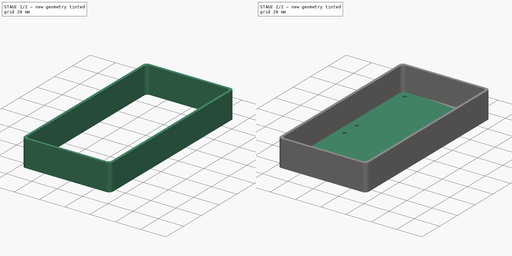
[diagram: build sequence overview — one tinted view per stage of 2, left to right]
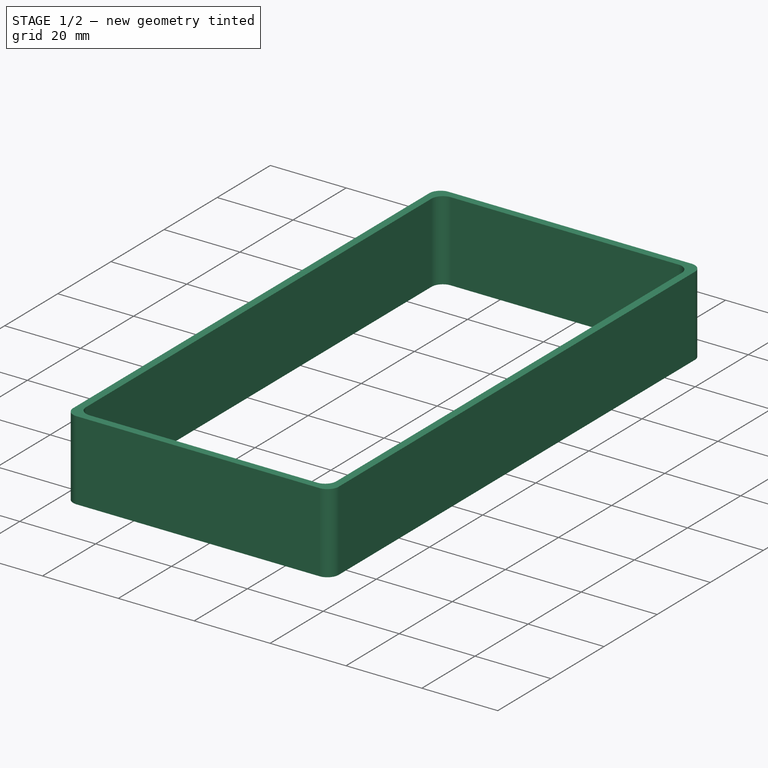
[diagram: stage 1 of 2 — iso view after this stage's code; geometry added in this stage tinted green]
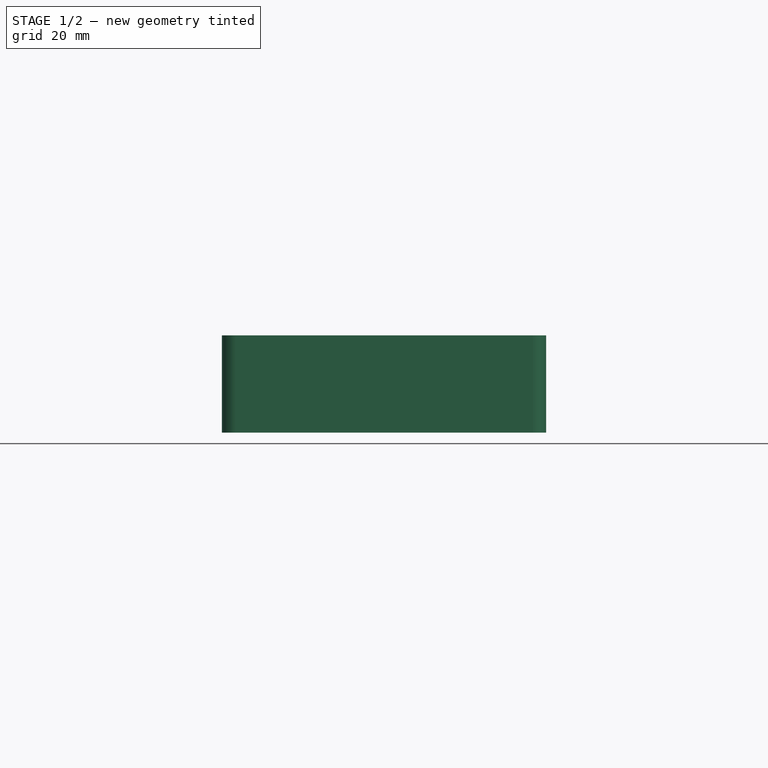
[diagram: stage 1 of 2 — front view after this stage's code; geometry added in this stage tinted green]
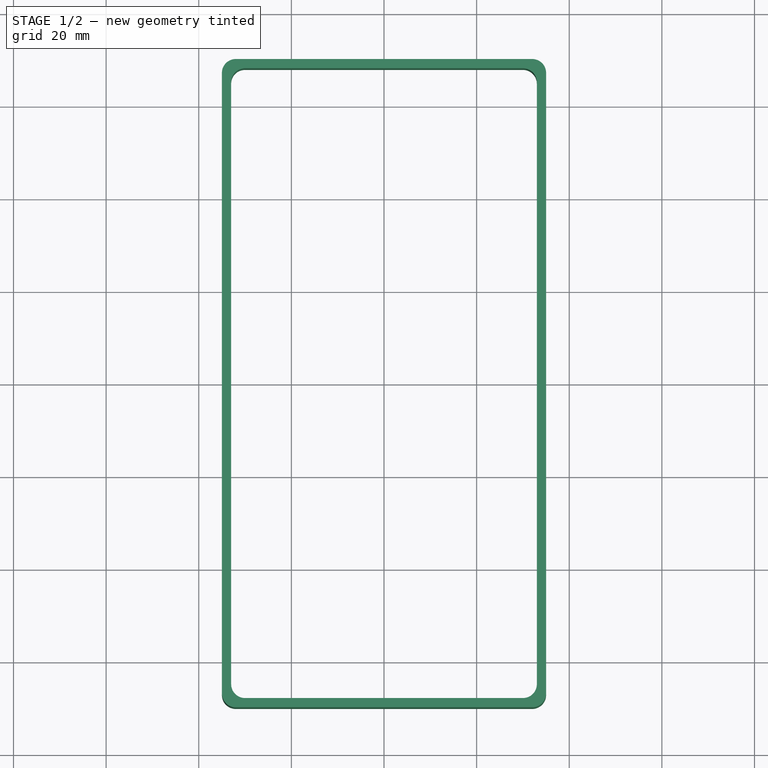
[diagram: stage 1 of 2 — top view after this stage's code; geometry added in this stage tinted green]
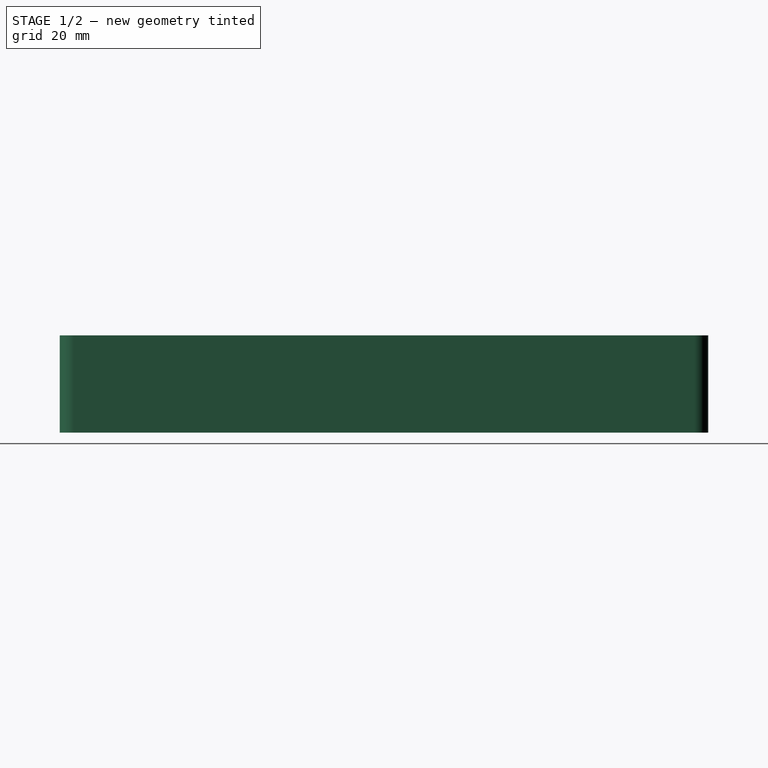
[diagram: stage 1 of 2 — right view after this stage's code; geometry added in this stage tinted green]
FCSTD DOCUMENT  (FreeCAD 0.20R29410 (Git))
Label: 风速表外壳
License: All rights reserved
LicenseURL: http://en.wikipedia.org/wiki/All_rights_reserved
objects: PartDesign::Pad×4, Sketcher::SketchObject×3, PartDesign::Body×3
note: 14 computed .brp shape members not serialized (recipe doc carries the construction recipe); baked Part::Feature solids carry a one-line shape summary decoded from their .brp

FEATURE [PartDesign::Body] Body001  label="顶部"
  Group = -> [Sketch001,Pad001]
  Origin = -> Origin001
  Placement = pos=(0,0,44) rot=(0,0,1;0rad)
  Tip = -> Pad001
FEATURE [Sketcher::SketchObject] Sketch002
  FullyConstrained = true
  MapMode = 5
  Support = -> [XY_Plane002]
  sketch-geometry (20):
    g0: ArcOfCircle CenterX=-32 CenterY=67 CenterZ=0 NormalX=0 NormalY=0 NormalZ=1 AngleXU=0 Radius=3 StartAngle=1.5708 EndAngle=3.14159
    g1: LineSegment StartX=-32 StartY=70 StartZ=0 EndX=32 EndY=70 EndZ=0
    g2: ArcOfCircle CenterX=32 CenterY=67 CenterZ=0 NormalX=0 NormalY=0 NormalZ=1 AngleXU=0 Radius=3 StartAngle=1.8e-15 EndAngle=1.5708
    g3: LineSegment StartX=35 StartY=67 StartZ=0 EndX=35 EndY=-67 EndZ=0
    g4: ArcOfCircle CenterX=32 CenterY=-67 CenterZ=0 NormalX=0 NormalY=0 NormalZ=1 AngleXU=0 Radius=3 StartAngle=4.71239 EndAngle=6.28319
    g5: LineSegment StartX=32 StartY=-70 StartZ=0 EndX=-32 EndY=-70 EndZ=0
    g6: ArcOfCircle CenterX=-32 CenterY=-67 CenterZ=0 NormalX=0 NormalY=0 NormalZ=1 AngleXU=0 Radius=3 StartAngle=3.14159 EndAngle=4.71239
    g7: LineSegment StartX=-35 StartY=-67 StartZ=0 EndX=-35 EndY=67 EndZ=0
    g8: GeomPoint X=-35 Y=70 Z=0
    g9: GeomPoint X=35 Y=-70 Z=0
    g10: ArcOfCircle CenterX=-30 CenterY=65 CenterZ=0 NormalX=0 NormalY=0 NormalZ=1 AngleXU=0 Radius=3 StartAngle=1.5708 EndAngle=3.14159
    g11: LineSegment StartX=-30 StartY=68 StartZ=0 EndX=30 EndY=68 EndZ=0
    g12: ArcOfCircle CenterX=30 CenterY=65 CenterZ=0 NormalX=0 NormalY=0 NormalZ=1 AngleXU=0 Radius=3 StartAngle=2.2e-15 EndAngle=1.5708
    g13: LineSegment StartX=33 StartY=65 StartZ=0 EndX=33 EndY=-65 EndZ=0
    g14: ArcOfCircle CenterX=30 CenterY=-65 CenterZ=0 NormalX=0 NormalY=0 NormalZ=1 AngleXU=0 Radius=3 StartAngle=4.71239 EndAngle=6.28319
    g15: LineSegment StartX=30 StartY=-68 StartZ=0 EndX=-30 EndY=-68 EndZ=0
    g16: ArcOfCircle CenterX=-30 CenterY=-65 CenterZ=0 NormalX=0 NormalY=0 NormalZ=1 AngleXU=0 Radius=3 StartAngle=3.14159 EndAngle=4.71239
    g17: LineSegment StartX=-33 StartY=-65 StartZ=0 EndX=-33 EndY=65 EndZ=0
    g18: GeomPoint X=-33 Y=68 Z=0
    g19: GeomPoint X=33 Y=-68 Z=0
  constraints (44):
    c: Tangent(g0,g1) = 1.5708
    c: Tangent(g1,g2) = 1.5708
    c: Tangent(g2,g3) = 1.5708
    c: Tangent(g3,g4) = 1.5708
    c: Tangent(g4,g5) = 1.5708
    c: Tangent(g5,g6) = 1.5708
    c: Tangent(g6,g7) = 1.5708
    c: Tangent(g7,g0) = 1.5708
    c: Horizontal(g1)
    c: Horizontal(g5)
    c: Vertical(g3)
    c: Equal(g2,g4)
    c: Equal(g4,g6)
    c: PointOnObject(g8,g1)
    c: PointOnObject(g8,g7)
    c: PointOnObject(g9,g3)
    c: PointOnObject(g9,g5)
    c: Radius(g2) = 3
    c: Symmetric(g0,g2,g-2)
    c: Symmetric(g6,g0,g-1)
    c: DistanceX(g0,g2) = 70
    c: DistanceY(g5,g0) = 140
    c: Tangent(g10,g11) = 1.5708
    c: Tangent(g11,g12) = 1.5708
    c: Tangent(g12,g13) = 1.5708
    c: Tangent(g13,g14) = 1.5708
    c: Tangent(g14,g15) = 1.5708
    c: Tangent(g15,g16) = 1.5708
    c: Tangent(g16,g17) = 1.5708
    c: Tangent(g17,g10) = 1.5708
    c: Horizontal(g11)
    c: Horizontal(g15)
    c: Vertical(g13)
    c: Equal(g12,g14)
    c: Equal(g14,g16)
    c: PointOnObject(g18,g11)
    c: PointOnObject(g18,g17)
    c: PointOnObject(g19,g13)
    c: PointOnObject(g19,g15)
    c: Radius(g14) = 3
    c: Symmetric(g10,g12,g-2)
    c: Symmetric(g10,g16,g-1)
    c: Distance(g11,g14) = 136
    c: Distance(g13,g16) = 66
FEATURE [PartDesign::Pad] Pad002
  Direction = (0,0,1)
  Length = 2
  Length2 = 10
  Profile = -> Sketch002
  ReferenceAxis = -> Sketch002 [N_Axis]
  Type = 0
FEATURE [PartDesign::Pad] Pad003
  BaseFeature = -> Pad002
  Direction = (0,0,1)
  Length = 21
  Length2 = 10
  Profile = -> Sketch002
  ReferenceAxis = -> Sketch002 [N_Axis]
  Type = 0
FEATURE [PartDesign::Body] Body002  label="周围"
  Group = -> [Sketch002,Pad002,Pad003]
  Origin = -> Origin002
  Placement = pos=(0,0,105) rot=(0,0,1;0rad)
  Tip = -> Pad003
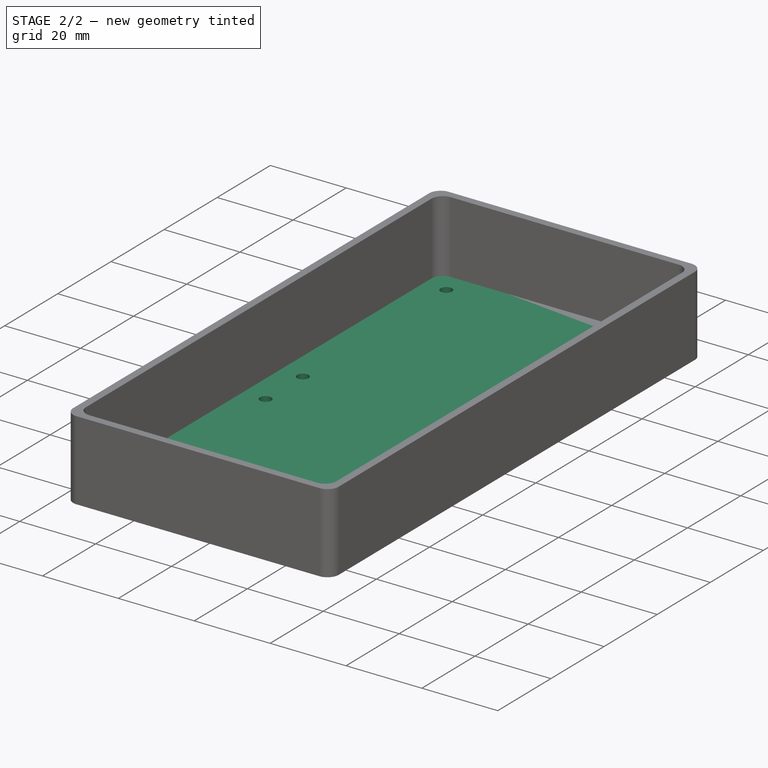
[diagram: stage 2 of 2 — iso view after this stage's code; geometry added in this stage tinted green]
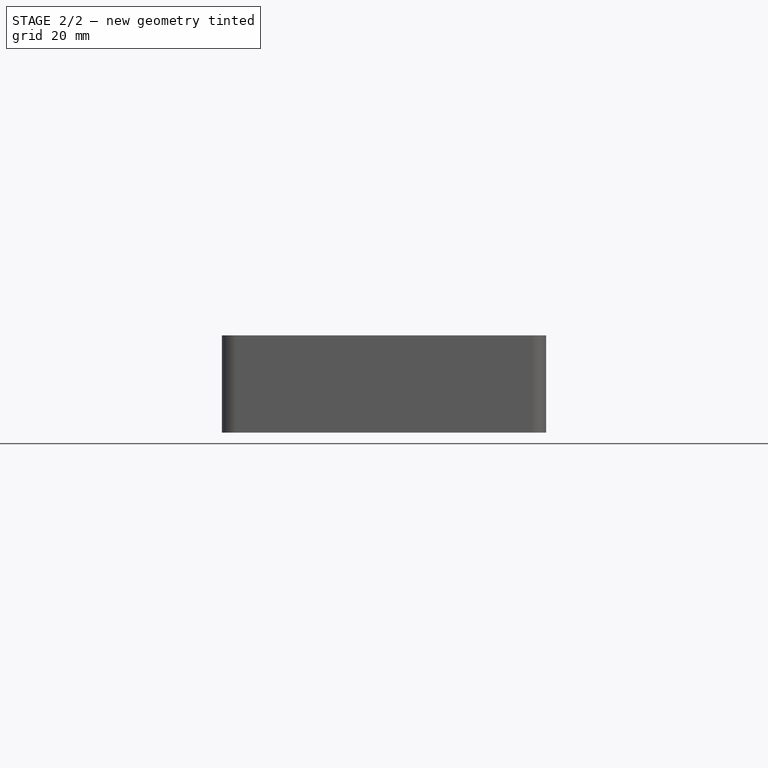
[diagram: stage 2 of 2 — front view after this stage's code; geometry added in this stage tinted green]
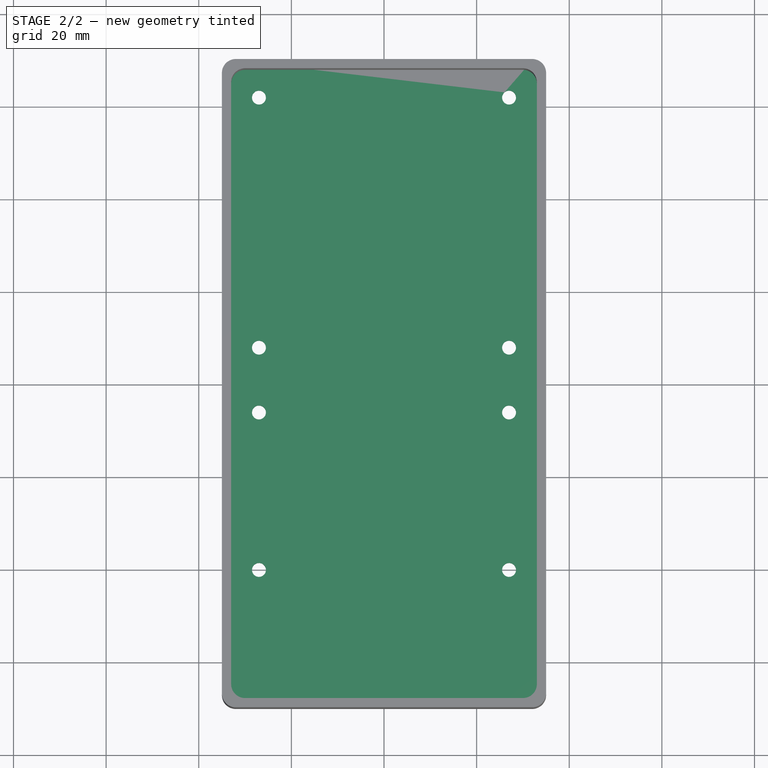
[diagram: stage 2 of 2 — top view after this stage's code; geometry added in this stage tinted green]
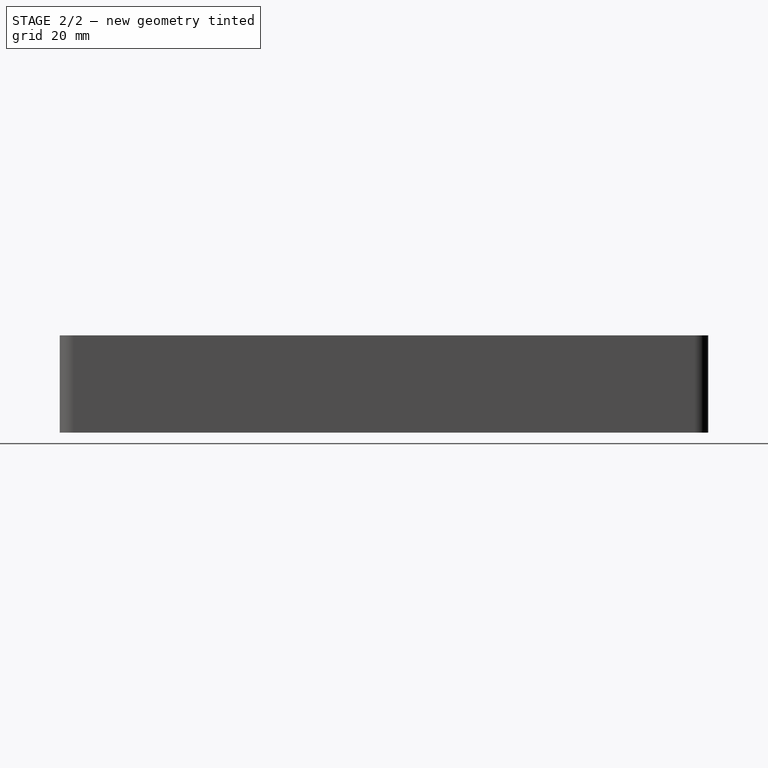
[diagram: stage 2 of 2 — right view after this stage's code; geometry added in this stage tinted green]
FEATURE [Sketcher::SketchObject] Sketch
  FullyConstrained = true
  MapMode = 5
  Support = -> [XY_Plane]
  sketch-geometry (34):
    g0: ArcOfCircle CenterX=-32 CenterY=67 CenterZ=0 NormalX=0 NormalY=0 NormalZ=1 AngleXU=0 Radius=3 StartAngle=1.5708 EndAngle=3.14159
    g1: LineSegment StartX=-32 StartY=70 StartZ=0 EndX=32 EndY=70 EndZ=0
    g2: ArcOfCircle CenterX=32 CenterY=67 CenterZ=0 NormalX=0 NormalY=0 NormalZ=1 AngleXU=0 Radius=3 StartAngle=1.7537e-12 EndAngle=1.5708
    g3: LineSegment StartX=35 StartY=67 StartZ=0 EndX=35 EndY=-67 EndZ=0
    g4: ArcOfCircle CenterX=32 CenterY=-67 CenterZ=0 NormalX=0 NormalY=0 NormalZ=1 AngleXU=0 Radius=3 StartAngle=4.71239 EndAngle=6.28319
    g5: LineSegment StartX=32 StartY=-70 StartZ=0 EndX=-32 EndY=-70 EndZ=0
    g6: ArcOfCircle CenterX=-32 CenterY=-67 CenterZ=0 NormalX=0 NormalY=0 NormalZ=1 AngleXU=0 Radius=3 StartAngle=3.14159 EndAngle=4.71239
    g7: LineSegment StartX=-35 StartY=-67 StartZ=0 EndX=-35 EndY=67 EndZ=0
    g8: GeomPoint X=-35 Y=70 Z=0
    g9: GeomPoint X=35 Y=-70 Z=0
    g10: Circle CenterX=-27 CenterY=62 CenterZ=0 NormalX=0 NormalY=0 NormalZ=1 AngleXU=0 Radius=1.5
    g11: Circle CenterX=27 CenterY=62 CenterZ=0 NormalX=0 NormalY=0 NormalZ=1 AngleXU=0 Radius=1.5
    g12: Circle CenterX=-27 CenterY=8 CenterZ=0 NormalX=0 NormalY=0 NormalZ=1 AngleXU=0 Radius=1.5
    g13: Circle CenterX=27 CenterY=8 CenterZ=0 NormalX=0 NormalY=0 NormalZ=1 AngleXU=0 Radius=1.5
    g14: Circle CenterX=-27 CenterY=-6 CenterZ=0 NormalX=0 NormalY=0 NormalZ=1 AngleXU=0 Radius=1.5
    g15: Circle CenterX=27 CenterY=-6 CenterZ=0 NormalX=0 NormalY=0 NormalZ=1 AngleXU=0 Radius=1.5
    g16: Circle CenterX=-27 CenterY=-40 CenterZ=0 NormalX=0 NormalY=0 NormalZ=1 AngleXU=0 Radius=1.5
    g17: Circle CenterX=27 CenterY=-40 CenterZ=0 NormalX=0 NormalY=0 NormalZ=1 AngleXU=0 Radius=1.5
    g18: LineSegment StartX=33 StartY=-40 StartZ=0 EndX=34 EndY=-40 EndZ=0
    g19: LineSegment StartX=34 StartY=-40 StartZ=0 EndX=34 EndY=-45 EndZ=0
    g20: LineSegment StartX=34 StartY=-45 StartZ=0 EndX=33 EndY=-45 EndZ=0
    g21: LineSegment StartX=33 StartY=-45 StartZ=0 EndX=33 EndY=-40 EndZ=0
    g22: LineSegment StartX=-34 StartY=-40 StartZ=0 EndX=-33 EndY=-40 EndZ=0
    g23: LineSegment StartX=-33 StartY=-40 StartZ=0 EndX=-33 EndY=-45 EndZ=0
    g24: LineSegment StartX=-33 StartY=-45 StartZ=0 EndX=-34 EndY=-45 EndZ=0
    g25: LineSegment StartX=-34 StartY=-45 StartZ=0 EndX=-34 EndY=-40 EndZ=0
    g26: LineSegment StartX=33 StartY=45 StartZ=0 EndX=34 EndY=45 EndZ=0
    g27: LineSegment StartX=34 StartY=45 StartZ=0 EndX=34 EndY=40 EndZ=0
    g28: LineSegment StartX=34 StartY=40 StartZ=0 EndX=33 EndY=40 EndZ=0
    g29: LineSegment StartX=33 StartY=40 StartZ=0 EndX=33 EndY=45 EndZ=0
    g30: LineSegment StartX=-34 StartY=45 StartZ=0 EndX=-33 EndY=45 EndZ=0
    g31: LineSegment StartX=-33 StartY=45 StartZ=0 EndX=-33 EndY=40 EndZ=0
    g32: LineSegment StartX=-33 StartY=40 StartZ=0 EndX=-34 EndY=40 EndZ=0
    g33: LineSegment StartX=-34 StartY=40 StartZ=0 EndX=-34 EndY=45 EndZ=0
  constraints (94):
    c: Tangent(g0,g1) = 1.5708
    c: Tangent(g1,g2) = 1.5708
    c: Tangent(g2,g3) = 1.5708
    c: Tangent(g3,g4) = 1.5708
    c: Tangent(g4,g5) = 1.5708
    c: Tangent(g5,g6) = 1.5708
    c: Tangent(g6,g7) = 1.5708
    c: Tangent(g7,g0) = 1.5708
    c: Horizontal(g1)
    c: Horizontal(g5)
    c: Vertical(g3)
    c: Equal(g2,g4)
    c: Equal(g4,g6)
    c: PointOnObject(g8,g1)
    c: PointOnObject(g8,g7)
    c: PointOnObject(g9,g3)
    c: PointOnObject(g9,g5)
    c: Radius(g2) = 3
    c: Symmetric(g0,g2,g-2)
    c: Symmetric(g6,g0,g-1)
    c: DistanceX(g0,g2) = 70
    c: DistanceY(g5,g0) = 140
    c: Diameter(g10) = 3
    c: Distance(g10,g7) = 8
    c: Distance(g10,g1) = 8
    c: Diameter(g11) = 3
    c: Distance(g11,g3) = 8
    c: Distance(g11,g1) = 8
    c: Diameter(g12) = 3
    c: Diameter(g14) = 3
    c: Diameter(g13) = 3
    c: Diameter(g15) = 3
    c: Diameter(g16) = 3
    c: Diameter(g17) = 3
    c: Distance(g12,g7) = 8
    c: Distance(g12,g1) = 62
    c: Distance(g13,g3) = 8
    c: Distance(g13,g1) = 62
    c: Distance(g14,g7) = 8
    c: Distance(g14,g1) = 76
    c: Distance(g15,g3) = 8
    c: Distance(g15,g1) = 76
    c: Distance(g16,g7) = 8
    c: Distance(g16,g5) = 30
    c: Distance(g17,g3) = 8
    c: Distance(g17,g5) = 30
    c: Coincident(g18,g19)
    c: Coincident(g19,g20)
    c: Coincident(g20,g21)
    c: Coincident(g21,g18)
    c: Horizontal(g18)
    c: Horizontal(g20)
    c: Vertical(g19)
    c: Vertical(g21)
    c: Distance(g19) = 5
    c: Distance(g18) = 1
    c: Distance(g18,g3) = 1
    c: Distance(g19,g5) = 25
    c: Coincident(g22,g23)
    c: Coincident(g23,g24)
    c: Coincident(g24,g25)
    c: Coincident(g25,g22)
    c: Horizontal(g22)
    c: Horizontal(g24)
    c: Vertical(g23)
    c: Vertical(g25)
    c: Distance(g22) = 1
    c: Distance(g23) = 5
    c: Distance(g22,g7) = 1
    c: Distance(g24,g5) = 25
    c: Coincident(g26,g27)
    c: Coincident(g27,g28)
    c: Coincident(g28,g29)
    c: Coincident(g29,g26)
    c: Horizontal(g26)
    c: Horizontal(g28)
    c: Vertical(g27)
    c: Vertical(g29)
    c: Distance(g27) = 5
    c: Distance(g26) = 1
    c: Distance(g26,g3) = 1
    c: Distance(g26,g1) = 25
    c: Coincident(g30,g31)
    c: Coincident(g31,g32)
    c: Coincident(g32,g33)
    c: Coincident(g33,g30)
    c: Horizontal(g30)
    c: Horizontal(g32)
    c: Vertical(g31)
    c: Vertical(g33)
    c: Distance(g30) = 1
    c: Distance(g33) = 5
    c: Distance(g30,g7) = 1
    c: Distance(g30,g1) = 25
FEATURE [PartDesign::Pad] Pad
  Direction = (0,0,1)
  Length = 2
  Length2 = 10
  Profile = -> Sketch
  ReferenceAxis = -> Sketch [N_Axis]
  Type = 0
FEATURE [PartDesign::Body] Body  label="底部"
  Group = -> [Sketch,Pad]
  Origin = -> Origin
  Tip = -> Pad
FEATURE [Sketcher::SketchObject] Sketch001
  FullyConstrained = false
  MapMode = 5
  Support = -> [XY_Plane001]
  sketch-geometry (55):
    g0: ArcOfCircle CenterX=-32 CenterY=67 CenterZ=0 NormalX=0 NormalY=0 NormalZ=1 AngleXU=0 Radius=3 StartAngle=1.5708 EndAngle=3.14159
    g1: LineSegment StartX=-32 StartY=70 StartZ=0 EndX=32 EndY=70 EndZ=0
    g2: ArcOfCircle CenterX=32 CenterY=67 CenterZ=0 NormalX=0 NormalY=0 NormalZ=1 AngleXU=0 Radius=3 StartAngle=1.7537e-12 EndAngle=1.5708
    g3: LineSegment StartX=35 StartY=67 StartZ=0 EndX=35 EndY=-67 EndZ=0
    g4: ArcOfCircle CenterX=32 CenterY=-67 CenterZ=0 NormalX=0 NormalY=0 NormalZ=1 AngleXU=0 Radius=3 StartAngle=4.71239 EndAngle=6.28319
    g5: LineSegment StartX=32 StartY=-70 StartZ=0 EndX=-32 EndY=-70 EndZ=0
    g6: ArcOfCircle CenterX=-32 CenterY=-67 CenterZ=0 NormalX=0 NormalY=0 NormalZ=1 AngleXU=0 Radius=3 StartAngle=3.14159 EndAngle=4.71239
    g7: LineSegment StartX=-35 StartY=-67 StartZ=0 EndX=-35 EndY=67 EndZ=0
    g8: GeomPoint X=-35 Y=70 Z=0
    g9: GeomPoint X=35 Y=-70 Z=0
    g10: Circle CenterX=-27 CenterY=62 CenterZ=0 NormalX=0 NormalY=0 NormalZ=1 AngleXU=0 Radius=1.5
    g11: Circle CenterX=27 CenterY=62 CenterZ=0 NormalX=0 NormalY=0 NormalZ=1 AngleXU=0 Radius=1.5
    g12: Circle CenterX=-27 CenterY=8 CenterZ=0 NormalX=0 NormalY=0 NormalZ=1 AngleXU=0 Radius=1.5
    g13: Circle CenterX=27 CenterY=8 CenterZ=0 NormalX=0 NormalY=0 NormalZ=1 AngleXU=0 Radius=1.5
    g14: Circle CenterX=-27 CenterY=-6 CenterZ=0 NormalX=0 NormalY=0 NormalZ=1 AngleXU=0 Radius=1.5
    g15: Circle CenterX=27 CenterY=-6 CenterZ=0 NormalX=0 NormalY=0 NormalZ=1 AngleXU=0 Radius=1.5
    g16: Circle CenterX=-27 CenterY=-40 CenterZ=0 NormalX=0 NormalY=0 NormalZ=1 AngleXU=0 Radius=1.5
    g17: Circle CenterX=27 CenterY=-40 CenterZ=0 NormalX=0 NormalY=0 NormalZ=1 AngleXU=0 Radius=1.5
    g18: LineSegment StartX=33 StartY=-40 StartZ=0 EndX=34 EndY=-40 EndZ=0
    g19: LineSegment StartX=34 StartY=-40 StartZ=0 EndX=34 EndY=-45 EndZ=0
    g20: LineSegment StartX=34 StartY=-45 StartZ=0 EndX=33 EndY=-45 EndZ=0
    g21: LineSegment StartX=33 StartY=-45 StartZ=0 EndX=33 EndY=-40 EndZ=0
    g22: LineSegment StartX=-34 StartY=-40 StartZ=0 EndX=-33 EndY=-40 EndZ=0
    g23: LineSegment StartX=-33 StartY=-40 StartZ=0 EndX=-33 EndY=-45 EndZ=0
    g24: LineSegment StartX=-33 StartY=-45 StartZ=0 EndX=-34 EndY=-45 EndZ=0
    g25: LineSegment StartX=-34 StartY=-45 StartZ=0 EndX=-34 EndY=-40 EndZ=0
    g26: LineSegment StartX=33 StartY=45 StartZ=0 EndX=34 EndY=45 EndZ=0
    g27: LineSegment StartX=34 StartY=45 StartZ=0 EndX=34 EndY=40 EndZ=0
    g28: LineSegment StartX=34 StartY=40 StartZ=0 EndX=33 EndY=40 EndZ=0
    g29: LineSegment StartX=33 StartY=40 StartZ=0 EndX=33 EndY=45 EndZ=0
    g30: LineSegment StartX=-34 StartY=45 StartZ=0 EndX=-33 EndY=45 EndZ=0
    g31: LineSegment StartX=-33 StartY=45 StartZ=0 EndX=-33 EndY=40 EndZ=0
    g32: LineSegment StartX=-33 StartY=40 StartZ=0 EndX=-34 EndY=40 EndZ=0
    g33: LineSegment StartX=-34 StartY=40 StartZ=0 EndX=-34 EndY=45 EndZ=0
    g34: Circle CenterX=-20.5948 CenterY=-13.7228 CenterZ=0 NormalX=0 NormalY=0 NormalZ=1 AngleXU=0 Radius=1.75
    g35: LineSegment StartX=-2.50559 StartY=-16.9946 StartZ=0 EndX=3.58812 EndY=-16.9946 EndZ=0
    g36: LineSegment StartX=3.58812 StartY=-16.9946 StartZ=0 EndX=3.58812 EndY=-23.0792 EndZ=0
    g37: LineSegment StartX=3.58812 StartY=-23.0792 StartZ=0 EndX=-2.50559 EndY=-23.0792 EndZ=0
    g38: LineSegment StartX=-2.50559 StartY=-23.0792 StartZ=0 EndX=-2.50559 EndY=-16.9946 EndZ=0
    g39: LineSegment StartX=-2.49582 StartY=-25.3022 StartZ=0 EndX=3.58228 EndY=-25.3022 EndZ=0
    g40: LineSegment StartX=3.58228 StartY=-25.3022 StartZ=0 EndX=3.58228 EndY=-31.376 EndZ=0
    g41: LineSegment StartX=3.58228 StartY=-31.376 StartZ=0 EndX=-2.49582 EndY=-31.376 EndZ=0
    g42: LineSegment StartX=-2.49582 StartY=-31.376 StartZ=0 EndX=-2.49582 EndY=-25.3022 EndZ=0
    g43: LineSegment StartX=-12.2223 StartY=-25.305 StartZ=0 EndX=-6.11208 EndY=-25.305 EndZ=0
    g44: LineSegment StartX=-6.11208 StartY=-25.305 StartZ=0 EndX=-6.11208 EndY=-31.3785 EndZ=0
    g45: LineSegment StartX=-6.11208 StartY=-31.3785 StartZ=0 EndX=-12.2223 EndY=-31.3785 EndZ=0
    g46: LineSegment StartX=-12.2223 StartY=-31.3785 StartZ=0 EndX=-12.2223 EndY=-25.305 EndZ=0
    g47: LineSegment StartX=7.2168 StartY=-25.3228 StartZ=0 EndX=13.2893 EndY=-25.3228 EndZ=0
    g48: LineSegment StartX=13.2893 StartY=-25.3228 StartZ=0 EndX=13.2893 EndY=-31.3598 EndZ=0
    g49: LineSegment StartX=13.2893 StartY=-31.3598 StartZ=0 EndX=7.2168 EndY=-31.3598 EndZ=0
    g50: LineSegment StartX=7.2168 StartY=-31.3598 StartZ=0 EndX=7.2168 EndY=-25.3228 EndZ=0
    g51: LineSegment StartX=-2.48669 StartY=-33.6423 StartZ=0 EndX=3.56185 EndY=-33.6423 EndZ=0
    g52: LineSegment StartX=3.56185 StartY=-33.6423 StartZ=0 EndX=3.56185 EndY=-39.7005 EndZ=0
    g53: LineSegment StartX=3.56185 StartY=-39.7005 StartZ=0 EndX=-2.48669 EndY=-39.7005 EndZ=0
    g54: LineSegment StartX=-2.48669 StartY=-39.7005 StartZ=0 EndX=-2.48669 EndY=-33.6423 EndZ=0
  constraints (135):
    c: Tangent(g0,g1) = 1.5708
    c: Tangent(g1,g2) = 1.5708
    c: Tangent(g2,g3) = 1.5708
    c: Tangent(g3,g4) = 1.5708
    c: Tangent(g4,g5) = 1.5708
    c: Tangent(g5,g6) = 1.5708
    c: Tangent(g6,g7) = 1.5708
    c: Tangent(g7,g0) = 1.5708
    c: Horizontal(g1)
    c: Horizontal(g5)
    c: Vertical(g3)
    c: Equal(g2,g4)
    c: Equal(g4,g6)
    c: PointOnObject(g8,g1)
    c: PointOnObject(g8,g7)
    c: PointOnObject(g9,g3)
    c: PointOnObject(g9,g5)
    c: Radius(g2) = 3
    c: Symmetric(g0,g2,g-2)
    c: Symmetric(g6,g0,g-1)
    c: DistanceX(g0,g2) = 70
    c: DistanceY(g5,g0) = 140
    c: Diameter(g10) = 3
    c: Distance(g10,g7) = 8
    c: Distance(g10,g1) = 8
    c: Diameter(g11) = 3
    c: Distance(g11,g3) = 8
    c: Distance(g11,g1) = 8
    c: Diameter(g12) = 3
    c: Diameter(g14) = 3
    c: Diameter(g13) = 3
    c: Diameter(g15) = 3
    c: Diameter(g16) = 3
    c: Diameter(g17) = 3
    c: Distance(g12,g7) = 8
    c: Distance(g12,g1) = 62
    c: Distance(g13,g3) = 8
    c: Distance(g13,g1) = 62
    c: Distance(g14,g7) = 8
    c: Distance(g14,g1) = 76
    c: Distance(g15,g3) = 8
    c: Distance(g15,g1) = 76
    c: Distance(g16,g7) = 8
    c: Distance(g16,g5) = 30
    c: Distance(g17,g3) = 8
    c: Distance(g17,g5) = 30
    c: Coincident(g18,g19)
    c: Coincident(g19,g20)
    c: Coincident(g20,g21)
    c: Coincident(g21,g18)
    c: Horizontal(g18)
    c: Horizontal(g20)
    c: Vertical(g19)
    c: Vertical(g21)
    c: Distance(g19) = 5
    c: Distance(g18) = 1
    c: Distance(g18,g3) = 1
    c: Distance(g19,g5) = 25
    c: Coincident(g22,g23)
    c: Coincident(g23,g24)
    c: Coincident(g24,g25)
    c: Coincident(g25,g22)
    c: Horizontal(g22)
    c: Horizontal(g24)
    c: Vertical(g23)
    c: Vertical(g25)
    c: Distance(g22) = 1
    c: Distance(g23) = 5
    c: Distance(g22,g7) = 1
    c: Distance(g24,g5) = 25
    c: Coincident(g26,g27)
    c: Coincident(g27,g28)
    c: Coincident(g28,g29)
    c: Coincident(g29,g26)
    c: Horizontal(g26)
    c: Horizontal(g28)
    c: Vertical(g27)
    c: Vertical(g29)
    c: Distance(g27) = 5
    c: Distance(g26) = 1
    c: Distance(g26,g3) = 1
    c: Distance(g26,g1) = 25
    c: Coincident(g30,g31)
    c: Coincident(g31,g32)
    c: Coincident(g32,g33)
    c: Coincident(g33,g30)
    c: Horizontal(g30)
    c: Horizontal(g32)
    c: Vertical(g31)
    c: Vertical(g33)
    c: Distance(g30) = 1
    c: Distance(g33) = 5
    c: Distance(g30,g7) = 1
    c: Distance(g30,g1) = 25
    c: Diameter(g34) = 3.5
    c: Coincident(g35,g36)
    c: Coincident(g36,g37)
    c: Coincident(g37,g38)
    c: Coincident(g38,g35)
    c: Horizontal(g35)
    c: Horizontal(g37)
    c: Vertical(g36)
    c: Vertical(g38)
    c: Coincident(g39,g40)
    c: Coincident(g40,g41)
    c: Coincident(g41,g42)
    c: Coincident(g42,g39)
    c: Horizontal(g39)
    c: Horizontal(g41)
    c: Vertical(g40)
    c: Vertical(g42)
    c: Coincident(g43,g44)
    c: Coincident(g44,g45)
    c: Coincident(g45,g46)
    c: Coincident(g46,g43)
    c: Horizontal(g43)
    c: Horizontal(g45)
    c: Vertical(g44)
    c: Vertical(g46)
    c: Coincident(g47,g48)
    c: Coincident(g48,g49)
    c: Coincident(g49,g50)
    c: Coincident(g50,g47)
    c: Horizontal(g47)
    c: Horizontal(g49)
    c: Vertical(g48)
    c: Vertical(g50)
    c: Coincident(g51,g52)
    c: Coincident(g52,g53)
    c: Coincident(g53,g54)
    c: Coincident(g54,g51)
    c: Horizontal(g51)
    c: Horizontal(g53)
    c: Vertical(g52)
    c: Vertical(g54)
FEATURE [PartDesign::Pad] Pad001
  Direction = (0,0,1)
  Length = 2
  Length2 = 10
  Profile = -> Sketch001
  ReferenceAxis = -> Sketch001 [N_Axis]
  Type = 0
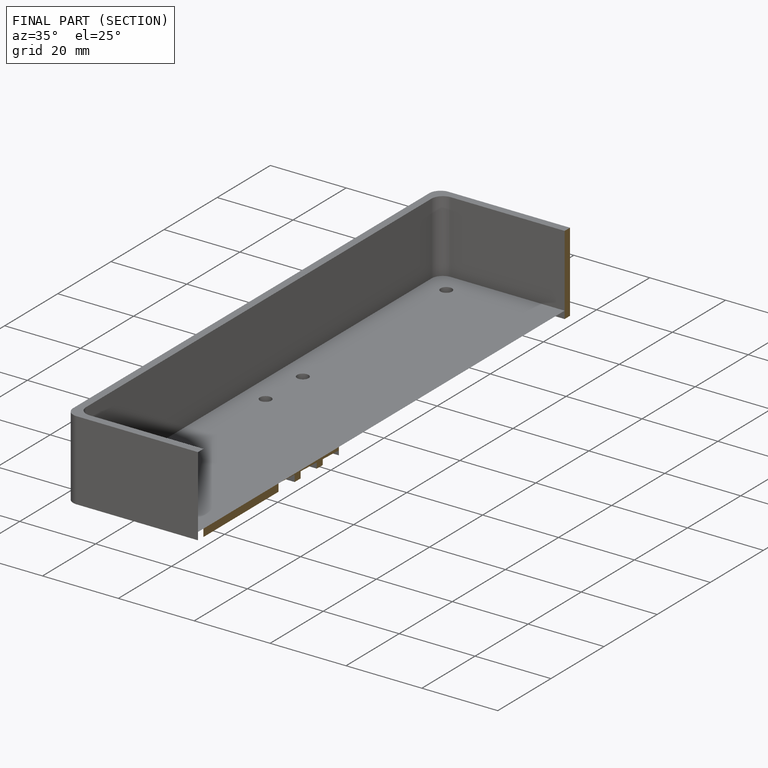
[diagram: finished part — half-section view (interior)]
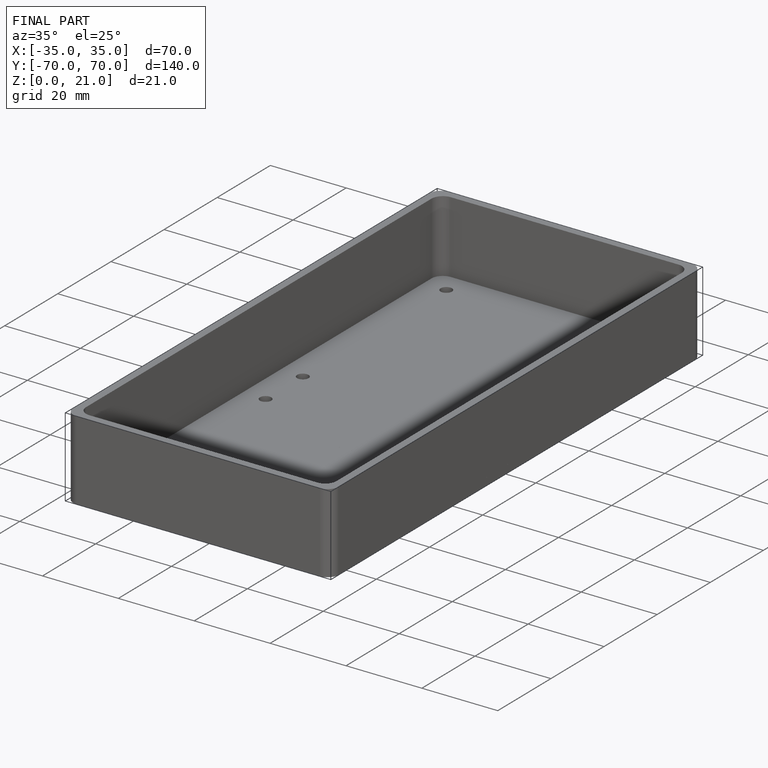
[diagram: finished part — iso view with bounding-box wireframe]
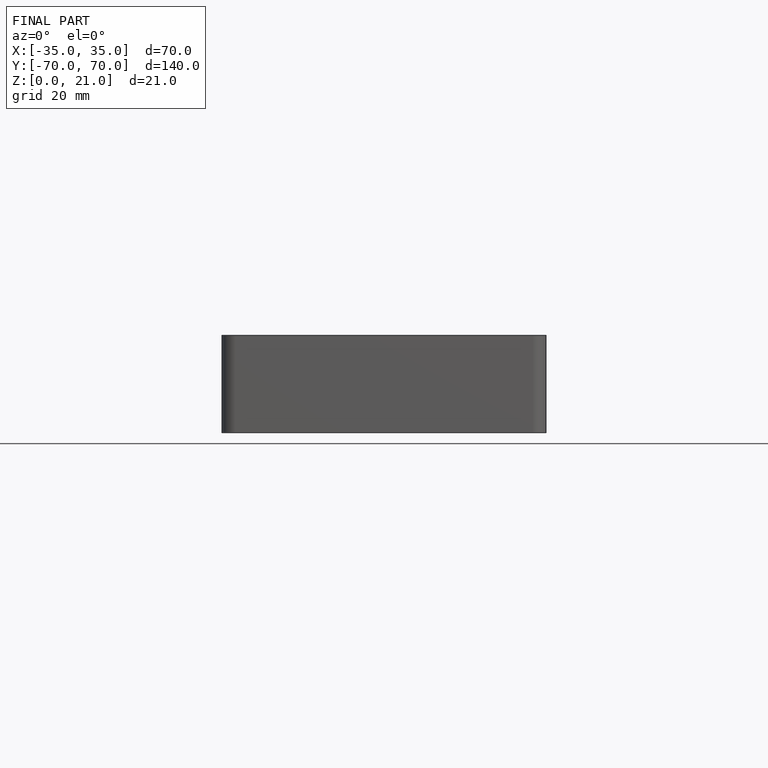
[diagram: finished part — front view with bounding-box wireframe]
